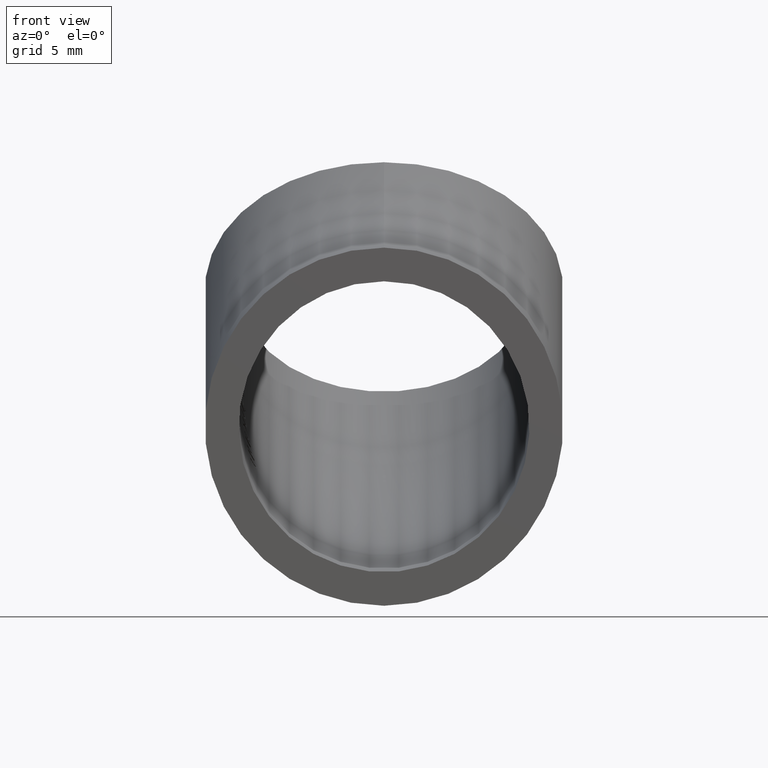
[diagram: clean part render]
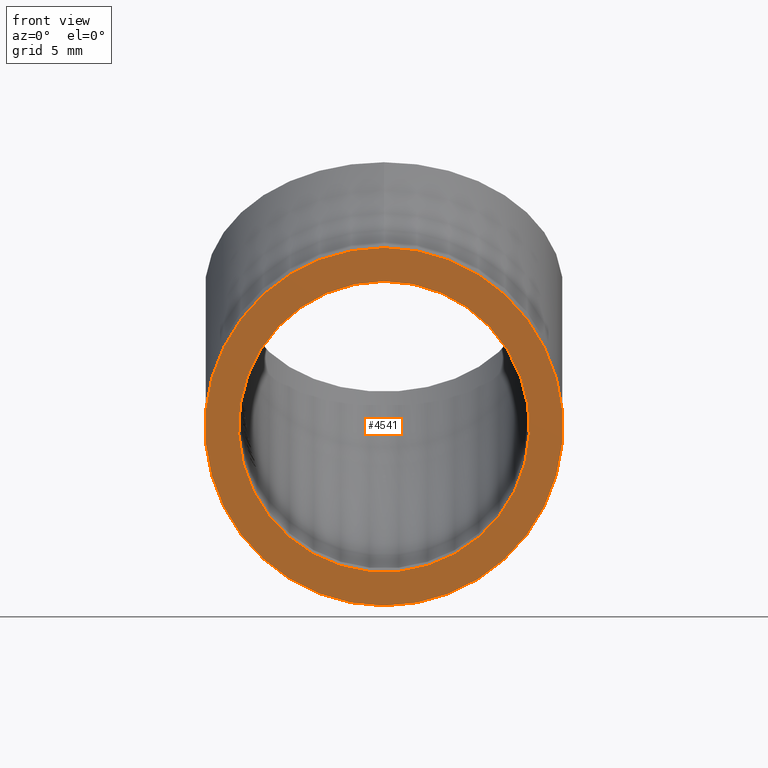
[diagram: same view with one face highlighted and labeled with its STEP entity id]
A machine part, front view. The second image highlights one B-rep face of the part: STEP entity #4541.
In plain terms, the highlighted planar face has unit normal (0, 1, 0).
Its self-contained STEP definition (entity closure, byte-faithful):
#441 = AXIS2_PLACEMENT_3D ( 'NONE', #8387, #7826, #9445 ) ;
#525 = DIRECTION ( 'NONE',  ( 0.000000000000000000, -0.000000000000000000, 1.000000000000000000 ) ) ;
#822 = VERTEX_POINT ( 'NONE', #2189 ) ;
#1505 = ORIENTED_EDGE ( 'NONE', *, *, #4789, .T. ) ;
#1532 = PLANE ( 'NONE',  #1933 ) ;
#1933 = AXIS2_PLACEMENT_3D ( 'NONE', #8921, #10572, #525 ) ;
#2189 = CARTESIAN_POINT ( 'NONE',  ( 0.000000000000000000, 0.000000000000000000, -19.34999999999999787 ) ) ;
#2739 = EDGE_LOOP ( 'NONE', ( #1505 ) ) ;
#3334 = FACE_BOUND ( 'NONE', #2739, .T. ) ;
#3818 = DIRECTION ( 'NONE',  ( 0.000000000000000000, 0.000000000000000000, 1.000000000000000000 ) ) ;
#4541 = ADVANCED_FACE ( 'NONE', ( #3334, #7741 ), #1532, .F. ) ;
#4750 = EDGE_CURVE ( 'NONE', #9023, #9023, #7210, .T. ) ;
#4789 = EDGE_CURVE ( 'NONE', #822, #822, #9262, .T. ) ;
#5509 = CARTESIAN_POINT ( 'NONE',  ( 0.000000000000000000, 0.000000000000000000, -28.00000000000000000 ) ) ;
#7210 = CIRCLE ( 'NONE', #441, 10.65000000000000036 ) ;
#7660 = AXIS2_PLACEMENT_3D ( 'NONE', #5509, #7932, #3818 ) ;
#7741 = FACE_OUTER_BOUND ( 'NONE', #7861, .T. ) ;
#7826 = DIRECTION ( 'NONE',  ( 0.000000000000000000, 1.000000000000000000, 0.000000000000000000 ) ) ;
#7861 = EDGE_LOOP ( 'NONE', ( #8164 ) ) ;
#7932 = DIRECTION ( 'NONE',  ( 0.000000000000000000, 1.000000000000000000, 0.000000000000000000 ) ) ;
#8164 = ORIENTED_EDGE ( 'NONE', *, *, #4750, .F. ) ;
#8387 = CARTESIAN_POINT ( 'NONE',  ( 0.000000000000000000, 0.000000000000000000, -28.00000000000000000 ) ) ;
#8921 = CARTESIAN_POINT ( 'NONE',  ( 0.000000000000000000, 0.000000000000000000, -28.00000000000000000 ) ) ;
#9023 = VERTEX_POINT ( 'NONE', #10337 ) ;
#9262 = CIRCLE ( 'NONE', #7660, 8.650000000000002132 ) ;
#9445 = DIRECTION ( 'NONE',  ( 0.000000000000000000, 0.000000000000000000, 1.000000000000000000 ) ) ;
#10337 = CARTESIAN_POINT ( 'NONE',  ( 0.000000000000000000, 0.000000000000000000, -17.35000000000000142 ) ) ;
#10572 = DIRECTION ( 'NONE',  ( 0.000000000000000000, 1.000000000000000000, 0.000000000000000000 ) ) ;